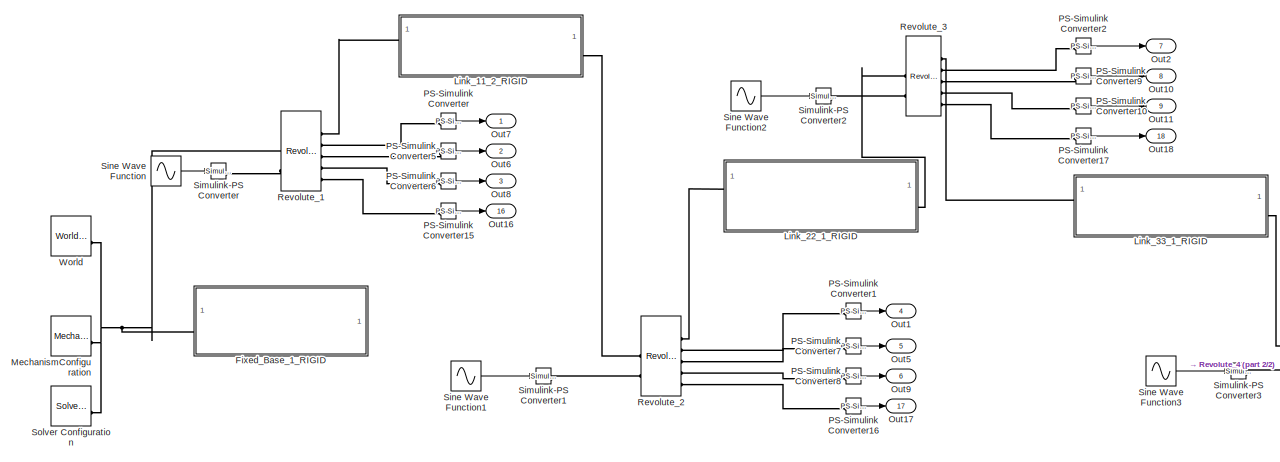
[diagram: root canvas - part 1/2, left side, full height]
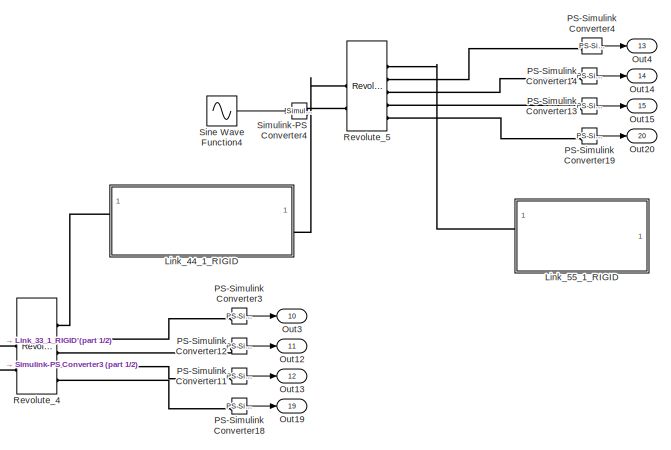
[diagram: root canvas - part 2/2, right side, full height]
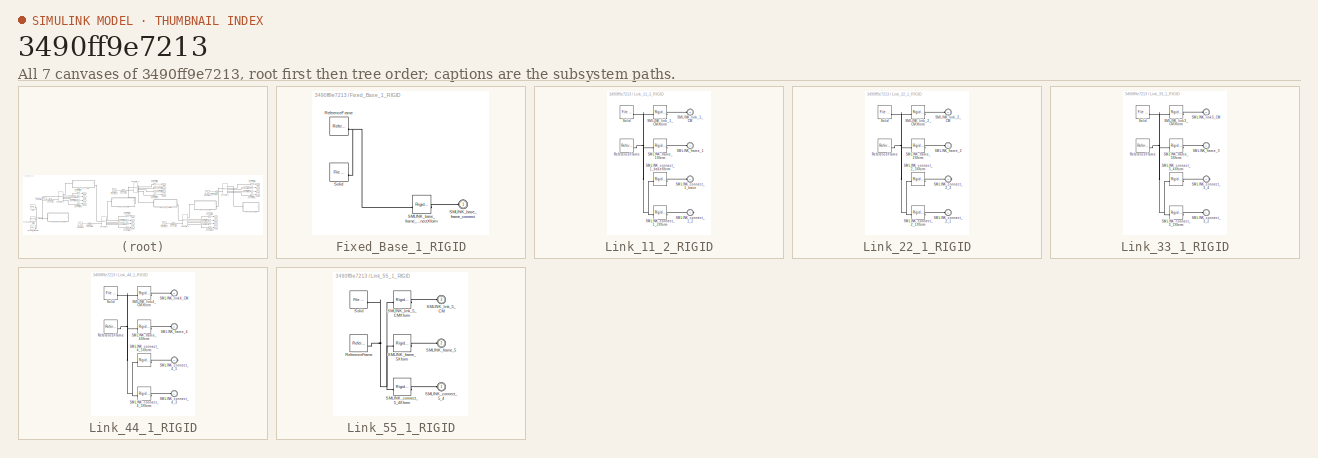
[diagram: thumbnail index - all 7 canvases of the model, root first then tree order]
MODEL slx_3490ff9e7213
KIND model
CONFIG AbsTol = auto
CONFIG EnableMultiTasking = off
CONFIG FixedStep = 0.001
CONFIG MaxStep = auto
CONFIG MinStep = auto
CONFIG RelTol = 1e-3
CONFIG SampleTimeConstraint = Unconstrained
CONFIG SolverName = FixedStepAuto
CONFIG StartTime = 0.0
CONFIG StopTime = 10.0
WORKSPACE source: external: MATLAB File  (data not in archive)
BLOCK [SubSystem] Fixed_Base_1_RIGID
BLOCK [Reference] Fixed_Base_1_RIGID/ReferenceFrame  REF=sm_lib/Frames and
Transforms/Reference
Frame
  SourceBlock = sm_lib/Frames and\nTransforms/Reference\nFrame
  SourceType = Reference\nFrame
BLOCK [PMIOPort] Fixed_Base_1_RIGID/SMLINK_base_frame_connect
  Side = Left
BLOCK [Reference] Fixed_Base_1_RIGID/SMLINK_base_frame_connectXform  REF=sm_lib/Frames and
Transforms/Rigid
Transform
  SourceBlock = sm_lib/Frames and\nTransforms/Rigid\nTransform
  SourceType = Rigid\nTransform
BLOCK [Reference] Fixed_Base_1_RIGID/Solid  REF=sm_lib/Body Elements/File Solid
  SourceBlock = sm_lib/Body Elements/File Solid
  SourceType = File Solid
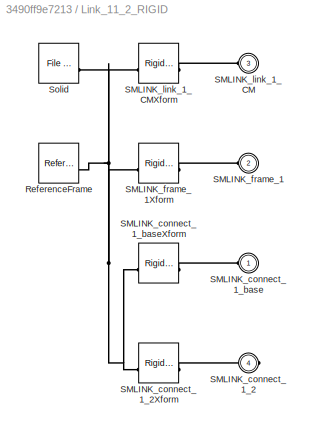
BLOCK [SubSystem] Link_11_2_RIGID
BLOCK [Reference] Link_11_2_RIGID/ReferenceFrame  REF=sm_lib/Frames and
Transforms/Reference
Frame
  SourceBlock = sm_lib/Frames and\nTransforms/Reference\nFrame
  SourceType = Reference\nFrame
BLOCK [PMIOPort] Link_11_2_RIGID/SMLINK_connect_1_2
  Port = 4
  Side = Right
BLOCK [Reference] Link_11_2_RIGID/SMLINK_connect_1_2Xform  REF=sm_lib/Frames and
Transforms/Rigid
Transform
  SourceBlock = sm_lib/Frames and\nTransforms/Rigid\nTransform
  SourceType = Rigid\nTransform
BLOCK [PMIOPort] Link_11_2_RIGID/SMLINK_connect_1_base
  Side = Left
BLOCK [Reference] Link_11_2_RIGID/SMLINK_connect_1_baseXform  REF=sm_lib/Frames and
Transforms/Rigid
Transform
  SourceBlock = sm_lib/Frames and\nTransforms/Rigid\nTransform
  SourceType = Rigid\nTransform
BLOCK [PMIOPort] Link_11_2_RIGID/SMLINK_frame_1
  Port = 2
  Side = Left
BLOCK [Reference] Link_11_2_RIGID/SMLINK_frame_1Xform  REF=sm_lib/Frames and
Transforms/Rigid
Transform
  SourceBlock = sm_lib/Frames and\nTransforms/Rigid\nTransform
  SourceType = Rigid\nTransform
BLOCK [PMIOPort] Link_11_2_RIGID/SMLINK_link_1_CM
  Port = 3
  Side = Left
BLOCK [Reference] Link_11_2_RIGID/SMLINK_link_1_CMXform  REF=sm_lib/Frames and
Transforms/Rigid
Transform
  SourceBlock = sm_lib/Frames and\nTransforms/Rigid\nTransform
  SourceType = Rigid\nTransform
BLOCK [Reference] Link_11_2_RIGID/Solid  REF=sm_lib/Body Elements/File Solid
  SourceBlock = sm_lib/Body Elements/File Solid
  SourceType = File Solid
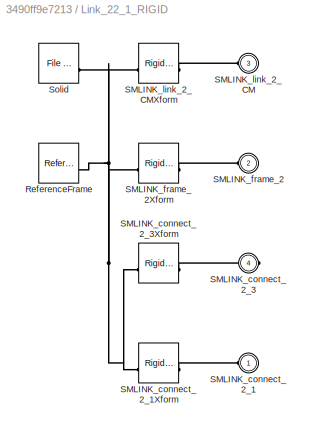
BLOCK [SubSystem] Link_22_1_RIGID
BLOCK [Reference] Link_22_1_RIGID/ReferenceFrame  REF=sm_lib/Frames and
Transforms/Reference
Frame
  SourceBlock = sm_lib/Frames and\nTransforms/Reference\nFrame
  SourceType = Reference\nFrame
BLOCK [PMIOPort] Link_22_1_RIGID/SMLINK_connect_2_1
  Side = Left
BLOCK [Reference] Link_22_1_RIGID/SMLINK_connect_2_1Xform  REF=sm_lib/Frames and
Transforms/Rigid
Transform
  SourceBlock = sm_lib/Frames and\nTransforms/Rigid\nTransform
  SourceType = Rigid\nTransform
BLOCK [PMIOPort] Link_22_1_RIGID/SMLINK_connect_2_3
  Port = 4
  Side = Right
BLOCK [Reference] Link_22_1_RIGID/SMLINK_connect_2_3Xform  REF=sm_lib/Frames and
Transforms/Rigid
Transform
  SourceBlock = sm_lib/Frames and\nTransforms/Rigid\nTransform
  SourceType = Rigid\nTransform
BLOCK [PMIOPort] Link_22_1_RIGID/SMLINK_frame_2
  Port = 2
  Side = Left
BLOCK [Reference] Link_22_1_RIGID/SMLINK_frame_2Xform  REF=sm_lib/Frames and
Transforms/Rigid
Transform
  SourceBlock = sm_lib/Frames and\nTransforms/Rigid\nTransform
  SourceType = Rigid\nTransform
BLOCK [PMIOPort] Link_22_1_RIGID/SMLINK_link_2_CM
  Port = 3
  Side = Left
BLOCK [Reference] Link_22_1_RIGID/SMLINK_link_2_CMXform  REF=sm_lib/Frames and
Transforms/Rigid
Transform
  SourceBlock = sm_lib/Frames and\nTransforms/Rigid\nTransform
  SourceType = Rigid\nTransform
BLOCK [Reference] Link_22_1_RIGID/Solid  REF=sm_lib/Body Elements/File Solid
  SourceBlock = sm_lib/Body Elements/File Solid
  SourceType = File Solid
BLOCK [SubSystem] Link_33_1_RIGID
BLOCK [Reference] Link_33_1_RIGID/ReferenceFrame  REF=sm_lib/Frames and
Transforms/Reference
Frame
  SourceBlock = sm_lib/Frames and\nTransforms/Reference\nFrame
  SourceType = Reference\nFrame
BLOCK [PMIOPort] Link_33_1_RIGID/SMLINK_connect_3_2
  Side = Left
BLOCK [Reference] Link_33_1_RIGID/SMLINK_connect_3_2Xform  REF=sm_lib/Frames and
Transforms/Rigid
Transform
  SourceBlock = sm_lib/Frames and\nTransforms/Rigid\nTransform
  SourceType = Rigid\nTransform
BLOCK [PMIOPort] Link_33_1_RIGID/SMLINK_connect_3_4
  Port = 4
  Side = Right
BLOCK [Reference] Link_33_1_RIGID/SMLINK_connect_3_4Xform  REF=sm_lib/Frames and
Transforms/Rigid
Transform
  SourceBlock = sm_lib/Frames and\nTransforms/Rigid\nTransform
  SourceType = Rigid\nTransform
BLOCK [PMIOPort] Link_33_1_RIGID/SMLINK_frame_3
  Port = 2
  Side = Left
BLOCK [Reference] Link_33_1_RIGID/SMLINK_frame_3Xform  REF=sm_lib/Frames and
Transforms/Rigid
Transform
  SourceBlock = sm_lib/Frames and\nTransforms/Rigid\nTransform
  SourceType = Rigid\nTransform
BLOCK [PMIOPort] Link_33_1_RIGID/SMLINK_link3_CM
  Port = 3
  Side = Left
BLOCK [Reference] Link_33_1_RIGID/SMLINK_link3_CMXform  REF=sm_lib/Frames and
Transforms/Rigid
Transform
  SourceBlock = sm_lib/Frames and\nTransforms/Rigid\nTransform
  SourceType = Rigid\nTransform
BLOCK [Reference] Link_33_1_RIGID/Solid  REF=sm_lib/Body Elements/File Solid
  SourceBlock = sm_lib/Body Elements/File Solid
  SourceType = File Solid
BLOCK [SubSystem] Link_44_1_RIGID
BLOCK [Reference] Link_44_1_RIGID/ReferenceFrame  REF=sm_lib/Frames and
Transforms/Reference
Frame
  SourceBlock = sm_lib/Frames and\nTransforms/Reference\nFrame
  SourceType = Reference\nFrame
BLOCK [PMIOPort] Link_44_1_RIGID/SMLINK_connect_4_3
  Side = Left
BLOCK [Reference] Link_44_1_RIGID/SMLINK_connect_4_3Xform  REF=sm_lib/Frames and
Transforms/Rigid
Transform
  SourceBlock = sm_lib/Frames and\nTransforms/Rigid\nTransform
  SourceType = Rigid\nTransform
BLOCK [PMIOPort] Link_44_1_RIGID/SMLINK_connect_4_5
  Port = 4
  Side = Right
BLOCK [Reference] Link_44_1_RIGID/SMLINK_connect_4_5Xform  REF=sm_lib/Frames and
Transforms/Rigid
Transform
  SourceBlock = sm_lib/Frames and\nTransforms/Rigid\nTransform
  SourceType = Rigid\nTransform
BLOCK [PMIOPort] Link_44_1_RIGID/SMLINK_frame_4
  Port = 2
  Side = Left
BLOCK [Reference] Link_44_1_RIGID/SMLINK_frame_4Xform  REF=sm_lib/Frames and
Transforms/Rigid
Transform
  SourceBlock = sm_lib/Frames and\nTransforms/Rigid\nTransform
  SourceType = Rigid\nTransform
BLOCK [PMIOPort] Link_44_1_RIGID/SMLINK_link4_CM
  Port = 3
  Side = Left
BLOCK [Reference] Link_44_1_RIGID/SMLINK_link4_CMXform  REF=sm_lib/Frames and
Transforms/Rigid
Transform
  SourceBlock = sm_lib/Frames and\nTransforms/Rigid\nTransform
  SourceType = Rigid\nTransform
BLOCK [Reference] Link_44_1_RIGID/Solid  REF=sm_lib/Body Elements/File Solid
  SourceBlock = sm_lib/Body Elements/File Solid
  SourceType = File Solid
BLOCK [SubSystem] Link_55_1_RIGID
BLOCK [Reference] Link_55_1_RIGID/ReferenceFrame  REF=sm_lib/Frames and
Transforms/Reference
Frame
  SourceBlock = sm_lib/Frames and\nTransforms/Reference\nFrame
  SourceType = Reference\nFrame
BLOCK [PMIOPort] Link_55_1_RIGID/SMLINK_connect_5_4
  Side = Left
BLOCK [Reference] Link_55_1_RIGID/SMLINK_connect_5_4Xform  REF=sm_lib/Frames and
Transforms/Rigid
Transform
  SourceBlock = sm_lib/Frames and\nTransforms/Rigid\nTransform
  SourceType = Rigid\nTransform
BLOCK [PMIOPort] Link_55_1_RIGID/SMLINK_frame_5
  Port = 2
  Side = Left
BLOCK [Reference] Link_55_1_RIGID/SMLINK_frame_5Xform  REF=sm_lib/Frames and
Transforms/Rigid
Transform
  SourceBlock = sm_lib/Frames and\nTransforms/Rigid\nTransform
  SourceType = Rigid\nTransform
BLOCK [PMIOPort] Link_55_1_RIGID/SMLINK_link_5_CM
  Port = 3
  Side = Left
BLOCK [Reference] Link_55_1_RIGID/SMLINK_link_5_CMXform  REF=sm_lib/Frames and
Transforms/Rigid
Transform
  SourceBlock = sm_lib/Frames and\nTransforms/Rigid\nTransform
  SourceType = Rigid\nTransform
BLOCK [Reference] Link_55_1_RIGID/Solid  REF=sm_lib/Body Elements/File Solid
  SourceBlock = sm_lib/Body Elements/File Solid
  SourceType = File Solid
BLOCK [Reference] MechanismConfiguration  REF=sm_lib/Utilities/Mechanism
Configuration
  SourceBlock = sm_lib/Utilities/Mechanism\nConfiguration
  SourceType = Mechanism\nConfiguration
BLOCK [Outport] Out1
  Port = 4
  SignalName = theta_2
BLOCK [Outport] Out10
  Port = 8
  SignalName = theta_3_dot
BLOCK [Outport] Out11
  Port = 9
  SignalName = theta_3_double_dot
BLOCK [Outport] Out12
  Port = 11
  SignalName = theta_4_dot
BLOCK [Outport] Out13
  Port = 12
  SignalName = theta_4_double_dot
BLOCK [Outport] Out14
  Port = 14
  SignalName = theta_5_dot
BLOCK [Outport] Out15
  Port = 15
  SignalName = theta_5_double_dot
BLOCK [Outport] Out16
  Port = 16
  SignalName = Tourqe_1
BLOCK [Outport] Out17
  Port = 17
  SignalName = Tourqe_2
BLOCK [Outport] Out18
  Port = 18
  SignalName = Tourqe_3
BLOCK [Outport] Out19
  Port = 19
  SignalName = Tourqe_4
BLOCK [Outport] Out2
  Port = 7
  SignalName = theta_3
BLOCK [Outport] Out20
  Port = 20
  SignalName = Tourqe_5
BLOCK [Outport] Out3
  Port = 10
  SignalName = theta_4
BLOCK [Outport] Out4
  Port = 13
  SignalName = theta_5
BLOCK [Outport] Out5
  Port = 5
  SignalName = theta_2_dot
BLOCK [Outport] Out6
  Port = 2
  SignalName = theta_1_dot
BLOCK [Outport] Out7
  SignalName = theta_1
BLOCK [Outport] Out8
  Port = 3
  SignalName = theta_1_double_dot
BLOCK [Outport] Out9
  Port = 6
  SignalName = theta_2_double_dot
BLOCK [Reference] PS-Simulink Converter  REF=nesl_utility/PS-Simulink
Converter
  SourceBlock = nesl_utility/PS-Simulink\nConverter
  SourceType = PS-Simulink\nConverter
BLOCK [Reference] PS-Simulink Converter1  REF=nesl_utility/PS-Simulink
Converter
  SourceBlock = nesl_utility/PS-Simulink\nConverter
  SourceType = PS-Simulink\nConverter
BLOCK [Reference] PS-Simulink Converter10  REF=nesl_utility/PS-Simulink
Converter
  SourceBlock = nesl_utility/PS-Simulink\nConverter
  SourceType = PS-Simulink\nConverter
BLOCK [Reference] PS-Simulink Converter11  REF=nesl_utility/PS-Simulink
Converter
  SourceBlock = nesl_utility/PS-Simulink\nConverter
  SourceType = PS-Simulink\nConverter
BLOCK [Reference] PS-Simulink Converter12  REF=nesl_utility/PS-Simulink
Converter
  SourceBlock = nesl_utility/PS-Simulink\nConverter
  SourceType = PS-Simulink\nConverter
BLOCK [Reference] PS-Simulink Converter13  REF=nesl_utility/PS-Simulink
Converter
  SourceBlock = nesl_utility/PS-Simulink\nConverter
  SourceType = PS-Simulink\nConverter
BLOCK [Reference] PS-Simulink Converter14  REF=nesl_utility/PS-Simulink
Converter
  SourceBlock = nesl_utility/PS-Simulink\nConverter
  SourceType = PS-Simulink\nConverter
BLOCK [Reference] PS-Simulink Converter15  REF=nesl_utility/PS-Simulink
Converter
  SourceBlock = nesl_utility/PS-Simulink\nConverter
  SourceType = PS-Simulink\nConverter
BLOCK [Reference] PS-Simulink Converter16  REF=nesl_utility/PS-Simulink
Converter
  SourceBlock = nesl_utility/PS-Simulink\nConverter
  SourceType = PS-Simulink\nConverter
BLOCK [Reference] PS-Simulink Converter17  REF=nesl_utility/PS-Simulink
Converter
  SourceBlock = nesl_utility/PS-Simulink\nConverter
  SourceType = PS-Simulink\nConverter
BLOCK [Reference] PS-Simulink Converter18  REF=nesl_utility/PS-Simulink
Converter
  SourceBlock = nesl_utility/PS-Simulink\nConverter
  SourceType = PS-Simulink\nConverter
BLOCK [Reference] PS-Simulink Converter19  REF=nesl_utility/PS-Simulink
Converter
  SourceBlock = nesl_utility/PS-Simulink\nConverter
  SourceType = PS-Simulink\nConverter
BLOCK [Reference] PS-Simulink Converter2  REF=nesl_utility/PS-Simulink
Converter
  SourceBlock = nesl_utility/PS-Simulink\nConverter
  SourceType = PS-Simulink\nConverter
BLOCK [Reference] PS-Simulink Converter3  REF=nesl_utility/PS-Simulink
Converter
  SourceBlock = nesl_utility/PS-Simulink\nConverter
  SourceType = PS-Simulink\nConverter
BLOCK [Reference] PS-Simulink Converter4  REF=nesl_utility/PS-Simulink
Converter
  SourceBlock = nesl_utility/PS-Simulink\nConverter
  SourceType = PS-Simulink\nConverter
BLOCK [Reference] PS-Simulink Converter5  REF=nesl_utility/PS-Simulink
Converter
  SourceBlock = nesl_utility/PS-Simulink\nConverter
  SourceType = PS-Simulink\nConverter
BLOCK [Reference] PS-Simulink Converter6  REF=nesl_utility/PS-Simulink
Converter
  SourceBlock = nesl_utility/PS-Simulink\nConverter
  SourceType = PS-Simulink\nConverter
BLOCK [Reference] PS-Simulink Converter7  REF=nesl_utility/PS-Simulink
Converter
  SourceBlock = nesl_utility/PS-Simulink\nConverter
  SourceType = PS-Simulink\nConverter
BLOCK [Reference] PS-Simulink Converter8  REF=nesl_utility/PS-Simulink
Converter
  SourceBlock = nesl_utility/PS-Simulink\nConverter
  SourceType = PS-Simulink\nConverter
BLOCK [Reference] PS-Simulink Converter9  REF=nesl_utility/PS-Simulink
Converter
  SourceBlock = nesl_utility/PS-Simulink\nConverter
  SourceType = PS-Simulink\nConverter
BLOCK [Reference] Revolute_1  REF=sm_lib/Joints/Revolute Joint
  SourceBlock = sm_lib/Joints/Revolute Joint
  SourceType = Revolute Joint
BLOCK [Reference] Revolute_2  REF=sm_lib/Joints/Revolute Joint
  SourceBlock = sm_lib/Joints/Revolute Joint
  SourceType = Revolute Joint
BLOCK [Reference] Revolute_3  REF=sm_lib/Joints/Revolute Joint
  SourceBlock = sm_lib/Joints/Revolute Joint
  SourceType = Revolute Joint
BLOCK [Reference] Revolute_4  REF=sm_lib/Joints/Revolute Joint
  SourceBlock = sm_lib/Joints/Revolute Joint
  SourceType = Revolute Joint
BLOCK [Reference] Revolute_5  REF=sm_lib/Joints/Revolute Joint
  SourceBlock = sm_lib/Joints/Revolute Joint
  SourceType = Revolute Joint
BLOCK [Reference] Simulink-PS Converter  REF=nesl_utility/Simulink-PS
Converter
  SourceBlock = nesl_utility/Simulink-PS\nConverter
  SourceType = Simulink-PS\nConverter
BLOCK [Reference] Simulink-PS Converter1  REF=nesl_utility/Simulink-PS
Converter
  SourceBlock = nesl_utility/Simulink-PS\nConverter
  SourceType = Simulink-PS\nConverter
BLOCK [Reference] Simulink-PS Converter2  REF=nesl_utility/Simulink-PS
Converter
  SourceBlock = nesl_utility/Simulink-PS\nConverter
  SourceType = Simulink-PS\nConverter
BLOCK [Reference] Simulink-PS Converter3  REF=nesl_utility/Simulink-PS
Converter
  SourceBlock = nesl_utility/Simulink-PS\nConverter
  SourceType = Simulink-PS\nConverter
BLOCK [Reference] Simulink-PS Converter4  REF=nesl_utility/Simulink-PS
Converter
  SourceBlock = nesl_utility/Simulink-PS\nConverter
  SourceType = Simulink-PS\nConverter
BLOCK [Sin] Sine Wave Function
  Amplitude = 3*pi
  Frequency = 3
  SampleTime = 0
BLOCK [Sin] Sine Wave Function1
  Amplitude = 3.5*pi
  Frequency = 3.5
  SampleTime = 0
BLOCK [Sin] Sine Wave Function2
  Amplitude = 4*pi
  Frequency = 4
  SampleTime = 0
BLOCK [Sin] Sine Wave Function3
  Amplitude = 4.5*pi
  Frequency = 4.5
  SampleTime = 0
BLOCK [Sin] Sine Wave Function4
  Amplitude = 5*pi
  Frequency = 5
  SampleTime = 0
BLOCK [Reference] Solver Configuration  REF=nesl_utility/Solver
Configuration
  SourceBlock = nesl_utility/Solver\nConfiguration
  SourceType = Solver\nConfiguration
BLOCK [Reference] World  REF=sm_lib/Frames and
Transforms/World Frame
  SourceBlock = sm_lib/Frames and\nTransforms/World Frame
  SourceType = World Frame
LINE PS-Simulink Converter10:1 -> Out11:1
LINE PS-Simulink Converter11:1 -> Out13:1
LINE PS-Simulink Converter12:1 -> Out12:1
LINE PS-Simulink Converter13:1 -> Out15:1
LINE PS-Simulink Converter14:1 -> Out14:1
LINE PS-Simulink Converter15:1 -> Out16:1
LINE PS-Simulink Converter16:1 -> Out17:1
LINE PS-Simulink Converter17:1 -> Out18:1
LINE PS-Simulink Converter18:1 -> Out19:1
LINE PS-Simulink Converter19:1 -> Out20:1
LINE PS-Simulink Converter1:1 -> Out1:1
LINE PS-Simulink Converter2:1 -> Out2:1
LINE PS-Simulink Converter3:1 -> Out3:1
LINE PS-Simulink Converter4:1 -> Out4:1
LINE PS-Simulink Converter5:1 -> Out6:1
LINE PS-Simulink Converter6:1 -> Out8:1
LINE PS-Simulink Converter7:1 -> Out5:1
LINE PS-Simulink Converter8:1 -> Out9:1
LINE PS-Simulink Converter9:1 -> Out10:1
LINE PS-Simulink Converter:1 -> Out7:1
LINE Sine Wave Function1:1 -> Simulink-PS Converter1:1
LINE Sine Wave Function2:1 -> Simulink-PS Converter2:1
LINE Sine Wave Function3:1 -> Simulink-PS Converter3:1
LINE Sine Wave Function4:1 -> Simulink-PS Converter4:1
LINE Sine Wave Function:1 -> Simulink-PS Converter:1
PNET net1: Fixed_Base_1_RIGID/ReferenceFrame:RConn1 -- Fixed_Base_1_RIGID/SMLINK_base_frame_connectXform:LConn1 -- Fixed_Base_1_RIGID/Solid:RConn1
PLINE Fixed_Base_1_RIGID/SMLINK_base_frame_connect:RConn1 -- Fixed_Base_1_RIGID/SMLINK_base_frame_connectXform:RConn1
PNET net2: Fixed_Base_1_RIGID:LConn1 -- MechanismConfiguration:RConn1 -- Revolute_1:LConn1 -- Solver Configuration:RConn1 -- World:RConn1
PNET net3: Link_11_2_RIGID/ReferenceFrame:RConn1 -- Link_11_2_RIGID/SMLINK_connect_1_2Xform:LConn1 -- Link_11_2_RIGID/SMLINK_connect_1_baseXform:LConn1 -- Link_11_2_RIGID/SMLINK_frame_1Xform:LConn1 -- Link_11_2_RIGID/SMLINK_link_1_CMXform:LConn1 -- Link_11_2_RIGID/Solid:RConn1
PLINE Link_11_2_RIGID/SMLINK_connect_1_2:RConn1 -- Link_11_2_RIGID/SMLINK_connect_1_2Xform:RConn1
PLINE Link_11_2_RIGID/SMLINK_connect_1_base:RConn1 -- Link_11_2_RIGID/SMLINK_connect_1_baseXform:RConn1
PLINE Link_11_2_RIGID/SMLINK_frame_1:RConn1 -- Link_11_2_RIGID/SMLINK_frame_1Xform:RConn1
PLINE Link_11_2_RIGID/SMLINK_link_1_CM:RConn1 -- Link_11_2_RIGID/SMLINK_link_1_CMXform:RConn1
PLINE Link_11_2_RIGID:LConn1 -- Revolute_1:RConn1
PLINE Link_11_2_RIGID:RConn1 -- Revolute_2:LConn1
PNET net4: Link_22_1_RIGID/ReferenceFrame:RConn1 -- Link_22_1_RIGID/SMLINK_connect_2_1Xform:LConn1 -- Link_22_1_RIGID/SMLINK_connect_2_3Xform:LConn1 -- Link_22_1_RIGID/SMLINK_frame_2Xform:LConn1 -- Link_22_1_RIGID/SMLINK_link_2_CMXform:LConn1 -- Link_22_1_RIGID/Solid:RConn1
PLINE Link_22_1_RIGID/SMLINK_connect_2_1:RConn1 -- Link_22_1_RIGID/SMLINK_connect_2_1Xform:RConn1
PLINE Link_22_1_RIGID/SMLINK_connect_2_3:RConn1 -- Link_22_1_RIGID/SMLINK_connect_2_3Xform:RConn1
PLINE Link_22_1_RIGID/SMLINK_frame_2:RConn1 -- Link_22_1_RIGID/SMLINK_frame_2Xform:RConn1
PLINE Link_22_1_RIGID/SMLINK_link_2_CM:RConn1 -- Link_22_1_RIGID/SMLINK_link_2_CMXform:RConn1
PLINE Link_22_1_RIGID:LConn1 -- Revolute_2:RConn1
PLINE Link_22_1_RIGID:RConn1 -- Revolute_3:LConn1
PNET net5: Link_33_1_RIGID/ReferenceFrame:RConn1 -- Link_33_1_RIGID/SMLINK_connect_3_2Xform:LConn1 -- Link_33_1_RIGID/SMLINK_connect_3_4Xform:LConn1 -- Link_33_1_RIGID/SMLINK_frame_3Xform:LConn1 -- Link_33_1_RIGID/SMLINK_link3_CMXform:LConn1 -- Link_33_1_RIGID/Solid:RConn1
PLINE Link_33_1_RIGID/SMLINK_connect_3_2:RConn1 -- Link_33_1_RIGID/SMLINK_connect_3_2Xform:RConn1
PLINE Link_33_1_RIGID/SMLINK_connect_3_4:RConn1 -- Link_33_1_RIGID/SMLINK_connect_3_4Xform:RConn1
PLINE Link_33_1_RIGID/SMLINK_frame_3:RConn1 -- Link_33_1_RIGID/SMLINK_frame_3Xform:RConn1
PLINE Link_33_1_RIGID/SMLINK_link3_CM:RConn1 -- Link_33_1_RIGID/SMLINK_link3_CMXform:RConn1
PLINE Link_33_1_RIGID:LConn1 -- Revolute_3:RConn1
PLINE Link_33_1_RIGID:RConn1 -- Revolute_4:LConn1
PNET net6: Link_44_1_RIGID/ReferenceFrame:RConn1 -- Link_44_1_RIGID/SMLINK_connect_4_3Xform:LConn1 -- Link_44_1_RIGID/SMLINK_connect_4_5Xform:LConn1 -- Link_44_1_RIGID/SMLINK_frame_4Xform:LConn1 -- Link_44_1_RIGID/SMLINK_link4_CMXform:LConn1 -- Link_44_1_RIGID/Solid:RConn1
PLINE Link_44_1_RIGID/SMLINK_connect_4_3:RConn1 -- Link_44_1_RIGID/SMLINK_connect_4_3Xform:RConn1
PLINE Link_44_1_RIGID/SMLINK_connect_4_5:RConn1 -- Link_44_1_RIGID/SMLINK_connect_4_5Xform:RConn1
PLINE Link_44_1_RIGID/SMLINK_frame_4:RConn1 -- Link_44_1_RIGID/SMLINK_frame_4Xform:RConn1
PLINE Link_44_1_RIGID/SMLINK_link4_CM:RConn1 -- Link_44_1_RIGID/SMLINK_link4_CMXform:RConn1
PLINE Link_44_1_RIGID:LConn1 -- Revolute_4:RConn1
PLINE Link_44_1_RIGID:RConn1 -- Revolute_5:LConn1
PNET net7: Link_55_1_RIGID/ReferenceFrame:RConn1 -- Link_55_1_RIGID/SMLINK_connect_5_4Xform:LConn1 -- Link_55_1_RIGID/SMLINK_frame_5Xform:LConn1 -- Link_55_1_RIGID/SMLINK_link_5_CMXform:LConn1 -- Link_55_1_RIGID/Solid:RConn1
PLINE Link_55_1_RIGID/SMLINK_connect_5_4:RConn1 -- Link_55_1_RIGID/SMLINK_connect_5_4Xform:RConn1
PLINE Link_55_1_RIGID/SMLINK_frame_5:RConn1 -- Link_55_1_RIGID/SMLINK_frame_5Xform:RConn1
PLINE Link_55_1_RIGID/SMLINK_link_5_CM:RConn1 -- Link_55_1_RIGID/SMLINK_link_5_CMXform:RConn1
PLINE Link_55_1_RIGID:LConn1 -- Revolute_5:RConn1
PLINE PS-Simulink Converter10:LConn1 -- Revolute_3:RConn4
PLINE PS-Simulink Converter11:LConn1 -- Revolute_4:RConn4
PLINE PS-Simulink Converter12:LConn1 -- Revolute_4:RConn3
PLINE PS-Simulink Converter13:LConn1 -- Revolute_5:RConn4
PLINE PS-Simulink Converter14:LConn1 -- Revolute_5:RConn3
PLINE PS-Simulink Converter15:LConn1 -- Revolute_1:RConn5
PLINE PS-Simulink Converter16:LConn1 -- Revolute_2:RConn5
PLINE PS-Simulink Converter17:LConn1 -- Revolute_3:RConn5
PLINE PS-Simulink Converter18:LConn1 -- Revolute_4:RConn5
PLINE PS-Simulink Converter19:LConn1 -- Revolute_5:RConn5
PLINE PS-Simulink Converter1:LConn1 -- Revolute_2:RConn2
PLINE PS-Simulink Converter2:LConn1 -- Revolute_3:RConn2
PLINE PS-Simulink Converter3:LConn1 -- Revolute_4:RConn2
PLINE PS-Simulink Converter4:LConn1 -- Revolute_5:RConn2
PLINE PS-Simulink Converter5:LConn1 -- Revolute_1:RConn3
PLINE PS-Simulink Converter6:LConn1 -- Revolute_1:RConn4
PLINE PS-Simulink Converter7:LConn1 -- Revolute_2:RConn3
PLINE PS-Simulink Converter8:LConn1 -- Revolute_2:RConn4
PLINE PS-Simulink Converter9:LConn1 -- Revolute_3:RConn3
PLINE PS-Simulink Converter:LConn1 -- Revolute_1:RConn2
PLINE Revolute_1:LConn2 -- Simulink-PS Converter:RConn1
PLINE Revolute_2:LConn2 -- Simulink-PS Converter1:RConn1
PLINE Revolute_3:LConn2 -- Simulink-PS Converter2:RConn1
PLINE Revolute_4:LConn2 -- Simulink-PS Converter3:RConn1
PLINE Revolute_5:LConn2 -- Simulink-PS Converter4:RConn1
note: PNET lines group multi-terminal physical nets as a canonical sorted terminal list (undirected conserving connections); 2-terminal nets keep the pairwise PLINE form
